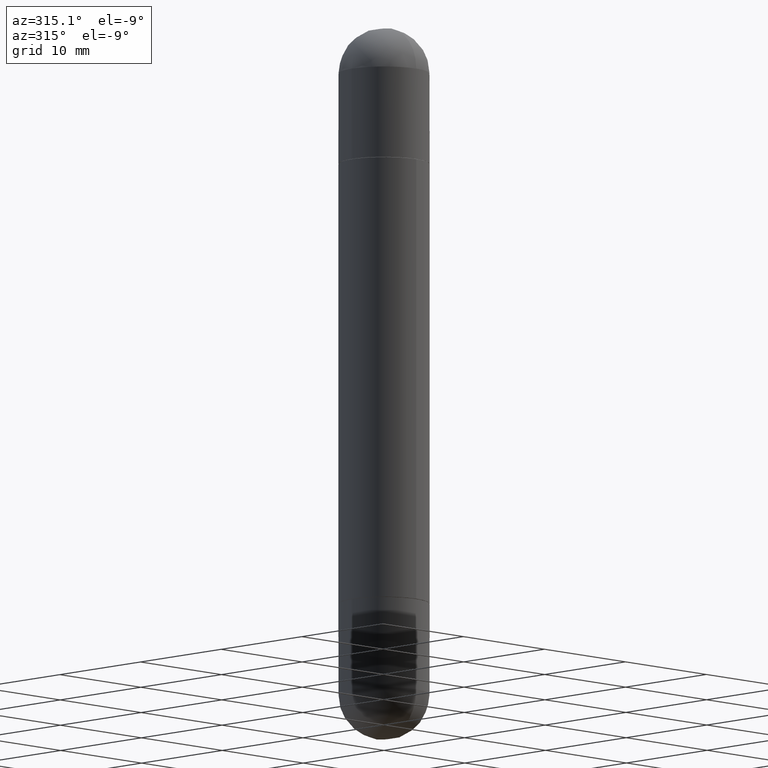
[diagram: clean part render]
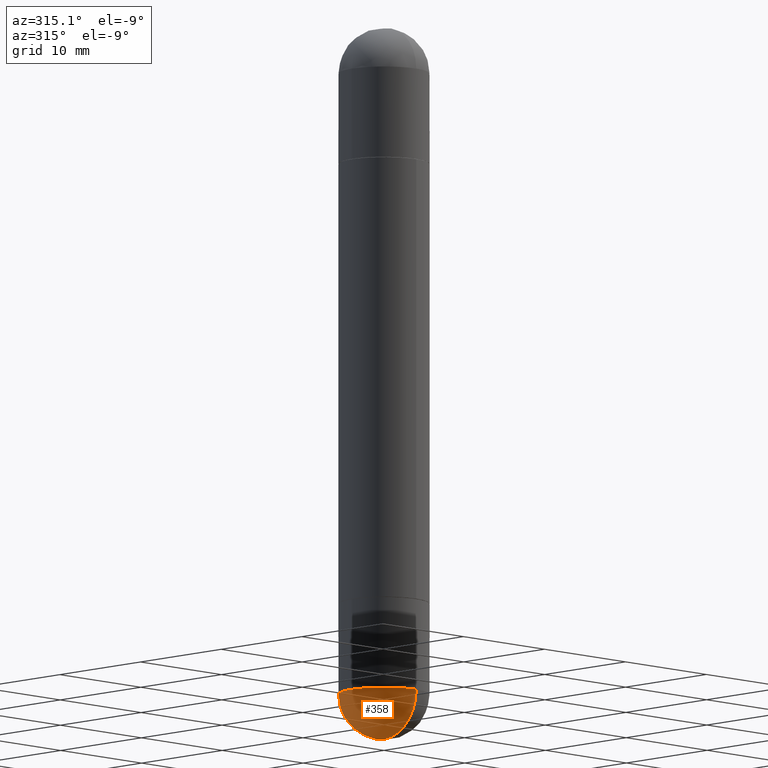
[diagram: same view with one face highlighted and labeled with its STEP entity id]
A machine part, auxiliary view. The second image highlights one B-rep face of the part: STEP entity #358.
In plain terms, the highlighted spherical surface has radius 4.0005 mm.
Its self-contained STEP definition (entity closure, byte-faithful):
#77 = AXIS2_PLACEMENT_3D ( 'NONE', #551, #113, #610 ) ;
#87 = CARTESIAN_POINT ( 'NONE',  ( 5.741110936594397103E-29, -9.124459439329419387E-15, -2.480300000000000171 ) ) ;
#94 = CARTESIAN_POINT ( 'NONE',  ( 1.099816621735642503E-15, 0.1574999999999917577, -2.322800000000000864 ) ) ;
#113 = DIRECTION ( 'NONE',  ( 1.000000000000000000, -6.982962677686265922E-15, 4.883557194083112340E-29 ) ) ;
#132 = EDGE_CURVE ( 'NONE', #492, #196, #151, .T. ) ;
#151 = CIRCLE ( 'NONE', #77, 0.1575000000000001676 ) ;
#196 = VERTEX_POINT ( 'NONE', #94 ) ;
#205 = EDGE_CURVE ( 'NONE', #492, #215, #258, .T. ) ;
#210 = DIRECTION ( 'NONE',  ( 6.982962677686265133E-15, 1.000000000000000000, -3.469013325287949743E-15 ) ) ;
#215 = VERTEX_POINT ( 'NONE', #474 ) ;
#221 = DIRECTION ( 'NONE',  ( -7.105427357601000281E-15, -1.000000000000000000, 0.000000000000000000 ) ) ;
#237 = CARTESIAN_POINT ( 'NONE',  ( -0.1575000000000000011, -6.441174308241848852E-15, -2.322799999999999976 ) ) ;
#258 = CIRCLE ( 'NONE', #350, 0.1575000000000001676 ) ;
#270 = CIRCLE ( 'NONE', #723, 0.1575000000000000011 ) ;
#290 = EDGE_CURVE ( 'NONE', #196, #603, #589, .T. ) ;
#316 = CARTESIAN_POINT ( 'NONE',  ( 5.680334943006836279E-29, -8.110012853864858834E-15, -2.322799999999999976 ) ) ;
#332 = EDGE_CURVE ( 'NONE', #603, #215, #270, .T. ) ;
#346 = CARTESIAN_POINT ( 'NONE',  ( 5.349215165092950032E-29, -8.584195222004910708E-15, -2.322800000000000420 ) ) ;
#350 = AXIS2_PLACEMENT_3D ( 'NONE', #346, #598, #221 ) ;
#358 = ADVANCED_FACE ( 'NONE', ( #511 ), #394, .T. ) ;
#359 = AXIS2_PLACEMENT_3D ( 'NONE', #316, #631, #433 ) ;
#363 = ORIENTED_EDGE ( 'NONE', *, *, #290, .F. ) ;
#378 = CARTESIAN_POINT ( 'NONE',  ( 5.680334943006836279E-29, -8.110012853864858834E-15, -2.322799999999999976 ) ) ;
#394 = SPHERICAL_SURFACE ( 'NONE', #711, 0.1575000000000001676 ) ;
#433 = DIRECTION ( 'NONE',  ( 1.000000000000000000, -6.982962677686268288E-15, 0.000000000000000000 ) ) ;
#464 = DIRECTION ( 'NONE',  ( -1.000000000000000000, 6.982962677686265133E-15, -4.883557194083112901E-29 ) ) ;
#474 = CARTESIAN_POINT ( 'NONE',  ( -1.119104808822103172E-15, -0.1575000000000084388, -2.322799999999999532 ) ) ;
#492 = VERTEX_POINT ( 'NONE', #87 ) ;
#500 = DIRECTION ( 'NONE',  ( -2.445468806185136597E-29, 3.491481338843145583E-15, 1.000000000000000000 ) ) ;
#511 = FACE_OUTER_BOUND ( 'NONE', #581, .T. ) ;
#551 = CARTESIAN_POINT ( 'NONE',  ( 5.349215165092950032E-29, -8.584195222004910708E-15, -2.322800000000000420 ) ) ;
#581 = EDGE_LOOP ( 'NONE', ( #687, #804, #593, #363 ) ) ;
#589 = CIRCLE ( 'NONE', #359, 0.1575000000000000011 ) ;
#593 = ORIENTED_EDGE ( 'NONE', *, *, #332, .F. ) ;
#598 = DIRECTION ( 'NONE',  ( -1.000000000000000000, 7.105427357601001070E-15, -4.926315508542082329E-29 ) ) ;
#603 = VERTEX_POINT ( 'NONE', #237 ) ;
#610 = DIRECTION ( 'NONE',  ( 6.982962677686265133E-15, 1.000000000000000000, 0.000000000000000000 ) ) ;
#631 = DIRECTION ( 'NONE',  ( -2.445468806185136597E-29, 3.491481338843145583E-15, 1.000000000000000000 ) ) ;
#687 = ORIENTED_EDGE ( 'NONE', *, *, #132, .F. ) ;
#711 = AXIS2_PLACEMENT_3D ( 'NONE', #717, #464, #210 ) ;
#717 = CARTESIAN_POINT ( 'NONE',  ( 5.349215165092950032E-29, -8.584195222004910708E-15, -2.322800000000000420 ) ) ;
#723 = AXIS2_PLACEMENT_3D ( 'NONE', #378, #500, #756 ) ;
#756 = DIRECTION ( 'NONE',  ( 1.000000000000000000, -6.982962677686268288E-15, 0.000000000000000000 ) ) ;
#804 = ORIENTED_EDGE ( 'NONE', *, *, #205, .T. ) ;